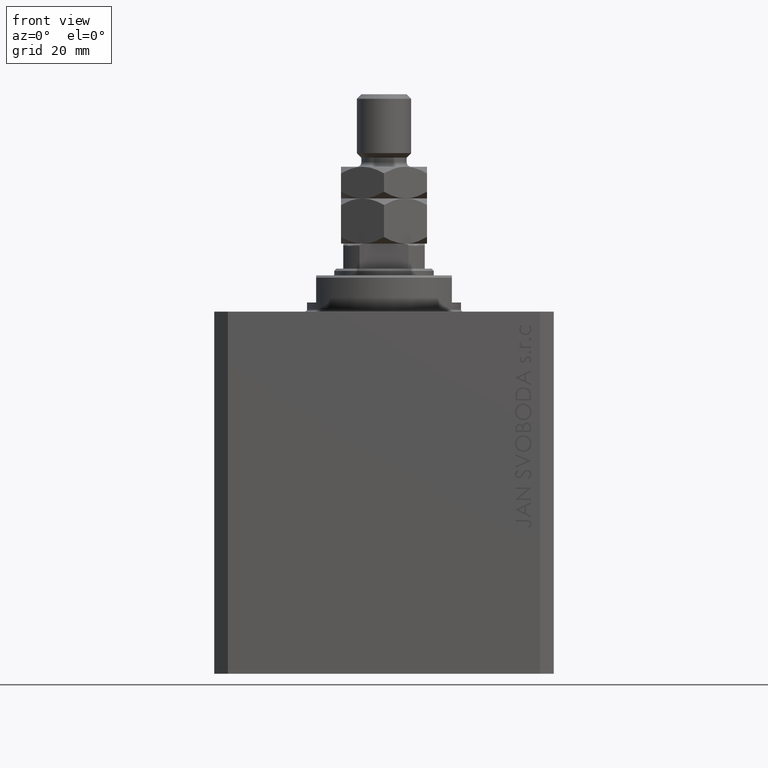
[diagram: clean part render]
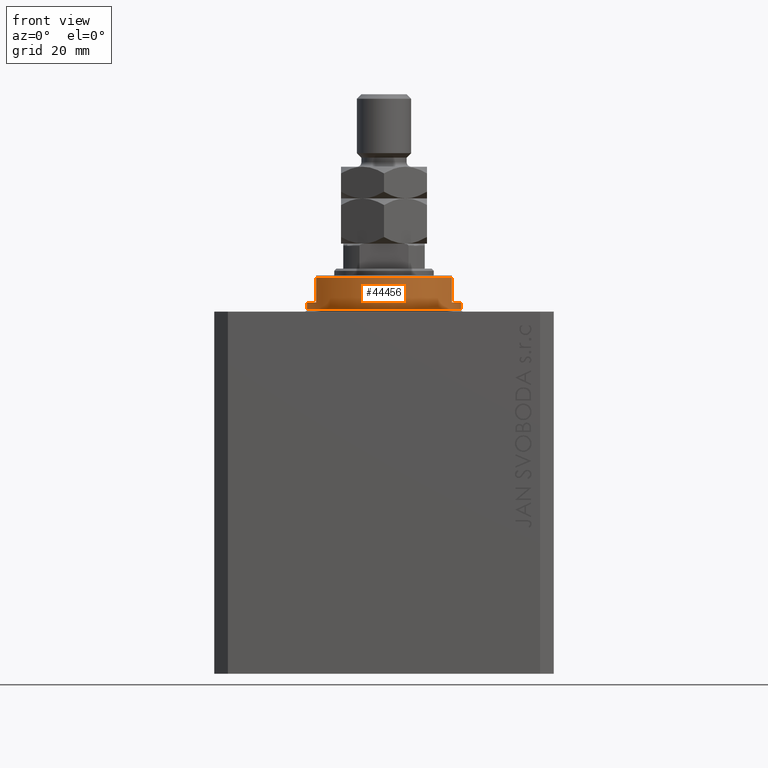
[diagram: same view with one face highlighted and labeled with its STEP entity id]
A machine part, front view. The second image highlights one B-rep face of the part: STEP entity #44456.
In plain terms, the highlighted cylindrical surface (partial cylindrical patch) has radius 17 mm, axis along (0, 0, -1).
Its self-contained STEP definition (entity closure, byte-faithful):
#463 = AXIS2_PLACEMENT_3D ( 'NONE', #36951, #29520, #44628 ) ;
#1099 = CIRCLE ( 'NONE', #32046, 17.00000000000000000 ) ;
#1271 = ORIENTED_EDGE ( 'NONE', *, *, #23126, .T. ) ;
#1525 = VERTEX_POINT ( 'NONE', #28714 ) ;
#1708 = EDGE_CURVE ( 'NONE', #45822, #2943, #38851, .T. ) ;
#2345 = CARTESIAN_POINT ( 'NONE',  ( -17.00000000000000000, 2.081899558550500280E-15, -8.000000000000000000 ) ) ;
#2826 = DIRECTION ( 'NONE',  ( 0.000000000000000000, 0.000000000000000000, -1.000000000000000000 ) ) ;
#2943 = VERTEX_POINT ( 'NONE', #33454 ) ;
#3469 = CARTESIAN_POINT ( 'NONE',  ( 15.00000000000000000, -8.000000000000001776, -8.000000000000000000 ) ) ;
#3626 = CARTESIAN_POINT ( 'NONE',  ( 17.00000000000000000, 0.000000000000000000, -2.000000000000000000 ) ) ;
#3748 = EDGE_CURVE ( 'NONE', #47217, #19846, #44436, .T. ) ;
#4078 = CARTESIAN_POINT ( 'NONE',  ( 0.000000000000000000, 0.000000000000000000, -2.000000000000000000 ) ) ;
#5457 = DIRECTION ( 'NONE',  ( -0.000000000000000000, -0.000000000000000000, 1.000000000000000000 ) ) ;
#5544 = AXIS2_PLACEMENT_3D ( 'NONE', #17474, #2826, #40548 ) ;
#6411 = DIRECTION ( 'NONE',  ( 0.000000000000000000, 0.000000000000000000, 1.000000000000000000 ) ) ;
#7482 = VERTEX_POINT ( 'NONE', #7855 ) ;
#7730 = EDGE_CURVE ( 'NONE', #45822, #7482, #10762, .T. ) ;
#7855 = CARTESIAN_POINT ( 'NONE',  ( -15.00000000000000000, -8.000000000000001776, -7.500000000000007105 ) ) ;
#8842 = CARTESIAN_POINT ( 'NONE',  ( -14.99999999999999645, -8.000000000000003553, -2.000000000000000000 ) ) ;
#9152 = CARTESIAN_POINT ( 'NONE',  ( 0.000000000000000000, 0.000000000000000000, -7.500000000000007105 ) ) ;
#10287 = DIRECTION ( 'NONE',  ( -0.000000000000000000, -0.000000000000000000, 1.000000000000000000 ) ) ;
#10333 = CARTESIAN_POINT ( 'NONE',  ( 15.00000000000000000, -8.000000000000001776, -7.500000000000007105 ) ) ;
#10668 = DIRECTION ( 'NONE',  ( 0.000000000000000000, 0.000000000000000000, -1.000000000000000000 ) ) ;
#10762 = LINE ( 'NONE', #14729, #19443 ) ;
#10926 = LINE ( 'NONE', #3469, #39076 ) ;
#12414 = CYLINDRICAL_SURFACE ( 'NONE', #46770, 17.00000000000000000 ) ;
#12539 = VECTOR ( 'NONE', #10287, 1000.000000000000000 ) ;
#14729 = CARTESIAN_POINT ( 'NONE',  ( -15.00000000000000000, -8.000000000000001776, -8.000000000000000000 ) ) ;
#15639 = ORIENTED_EDGE ( 'NONE', *, *, #21263, .F. ) ;
#16865 = DIRECTION ( 'NONE',  ( 1.000000000000000000, 0.000000000000000000, 0.000000000000000000 ) ) ;
#17474 = CARTESIAN_POINT ( 'NONE',  ( 0.000000000000000000, 0.000000000000000000, -2.000000000000000000 ) ) ;
#18934 = VERTEX_POINT ( 'NONE', #10333 ) ;
#19213 = DIRECTION ( 'NONE',  ( -1.000000000000000000, 0.000000000000000000, 0.000000000000000000 ) ) ;
#19443 = VECTOR ( 'NONE', #29397, 1000.000000000000000 ) ;
#19846 = VERTEX_POINT ( 'NONE', #43827 ) ;
#20828 = FACE_OUTER_BOUND ( 'NONE', #24599, .T. ) ;
#21263 = EDGE_CURVE ( 'NONE', #47217, #33324, #1099, .T. ) ;
#22460 = ORIENTED_EDGE ( 'NONE', *, *, #3748, .T. ) ;
#22855 = EDGE_CURVE ( 'NONE', #33324, #18934, #10926, .T. ) ;
#23126 = EDGE_CURVE ( 'NONE', #7482, #18934, #26434, .T. ) ;
#23592 = CARTESIAN_POINT ( 'NONE',  ( 0.000000000000000000, 0.000000000000000000, -8.000000000000000000 ) ) ;
#24599 = EDGE_LOOP ( 'NONE', ( #33988, #26828, #31940, #1271, #25994, #15639, #22460, #32732 ) ) ;
#25095 = CARTESIAN_POINT ( 'NONE',  ( 17.00000000000000000, 0.000000000000000000, -8.000000000000000000 ) ) ;
#25994 = ORIENTED_EDGE ( 'NONE', *, *, #22855, .F. ) ;
#26434 = CIRCLE ( 'NONE', #46215, 17.00000000000000000 ) ;
#26828 = ORIENTED_EDGE ( 'NONE', *, *, #1708, .F. ) ;
#26892 = CARTESIAN_POINT ( 'NONE',  ( 14.99999999999999645, -8.000000000000003553, -2.000000000000000000 ) ) ;
#28714 = CARTESIAN_POINT ( 'NONE',  ( -17.00000000000000000, 2.081899558550500280E-15, -0.5000000000000004441 ) ) ;
#29397 = DIRECTION ( 'NONE',  ( 0.000000000000000000, 0.000000000000000000, -1.000000000000000000 ) ) ;
#29520 = DIRECTION ( 'NONE',  ( -0.000000000000000000, -0.000000000000000000, -1.000000000000000000 ) ) ;
#31940 = ORIENTED_EDGE ( 'NONE', *, *, #7730, .T. ) ;
#32046 = AXIS2_PLACEMENT_3D ( 'NONE', #4078, #33382, #19213 ) ;
#32732 = ORIENTED_EDGE ( 'NONE', *, *, #47712, .T. ) ;
#32956 = DIRECTION ( 'NONE',  ( -1.000000000000000000, 0.000000000000000000, 0.000000000000000000 ) ) ;
#33324 = VERTEX_POINT ( 'NONE', #26892 ) ;
#33382 = DIRECTION ( 'NONE',  ( 0.000000000000000000, 0.000000000000000000, -1.000000000000000000 ) ) ;
#33454 = CARTESIAN_POINT ( 'NONE',  ( -17.00000000000000000, 2.081899558550500280E-15, -2.000000000000000000 ) ) ;
#33988 = ORIENTED_EDGE ( 'NONE', *, *, #34913, .F. ) ;
#34913 = EDGE_CURVE ( 'NONE', #2943, #1525, #47979, .T. ) ;
#35323 = CIRCLE ( 'NONE', #463, 17.00000000000000000 ) ;
#36261 = DIRECTION ( 'NONE',  ( -0.000000000000000000, -0.000000000000000000, 1.000000000000000000 ) ) ;
#36396 = VECTOR ( 'NONE', #36261, 1000.000000000000000 ) ;
#36951 = CARTESIAN_POINT ( 'NONE',  ( 0.000000000000000000, 0.000000000000000000, -0.5000000000000004441 ) ) ;
#38851 = CIRCLE ( 'NONE', #5544, 17.00000000000000000 ) ;
#39076 = VECTOR ( 'NONE', #10668, 1000.000000000000000 ) ;
#40548 = DIRECTION ( 'NONE',  ( -1.000000000000000000, 0.000000000000000000, 0.000000000000000000 ) ) ;
#43827 = CARTESIAN_POINT ( 'NONE',  ( 17.00000000000000000, 0.000000000000000000, -0.5000000000000004441 ) ) ;
#44436 = LINE ( 'NONE', #25095, #36396 ) ;
#44456 = ADVANCED_FACE ( 'NONE', ( #20828 ), #12414, .T. ) ;
#44628 = DIRECTION ( 'NONE',  ( 1.000000000000000000, 0.000000000000000000, 0.000000000000000000 ) ) ;
#45822 = VERTEX_POINT ( 'NONE', #8842 ) ;
#46215 = AXIS2_PLACEMENT_3D ( 'NONE', #9152, #6411, #32956 ) ;
#46770 = AXIS2_PLACEMENT_3D ( 'NONE', #23592, #5457, #16865 ) ;
#47217 = VERTEX_POINT ( 'NONE', #3626 ) ;
#47712 = EDGE_CURVE ( 'NONE', #19846, #1525, #35323, .T. ) ;
#47979 = LINE ( 'NONE', #2345, #12539 ) ;